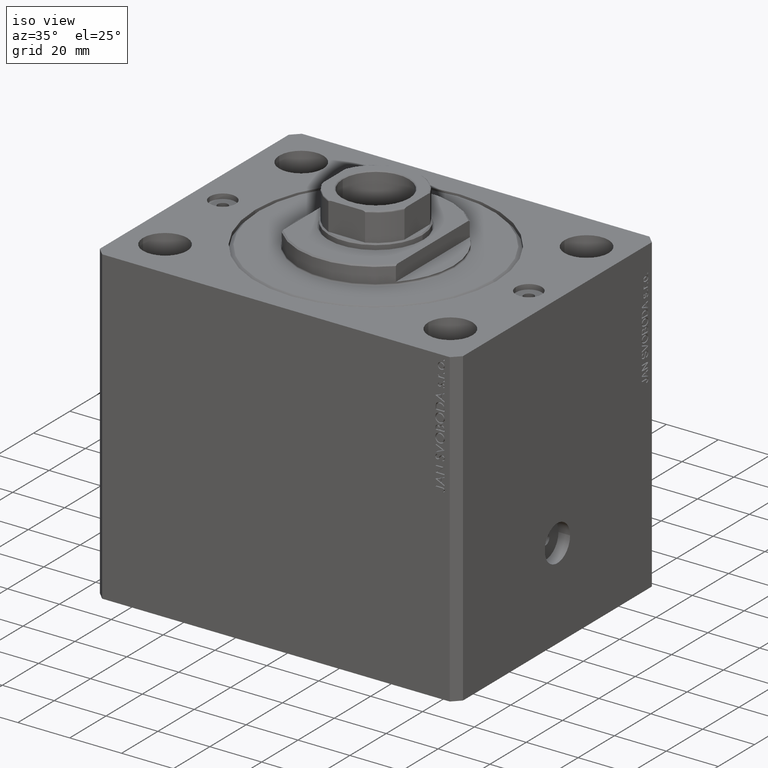
[diagram: clean part render]
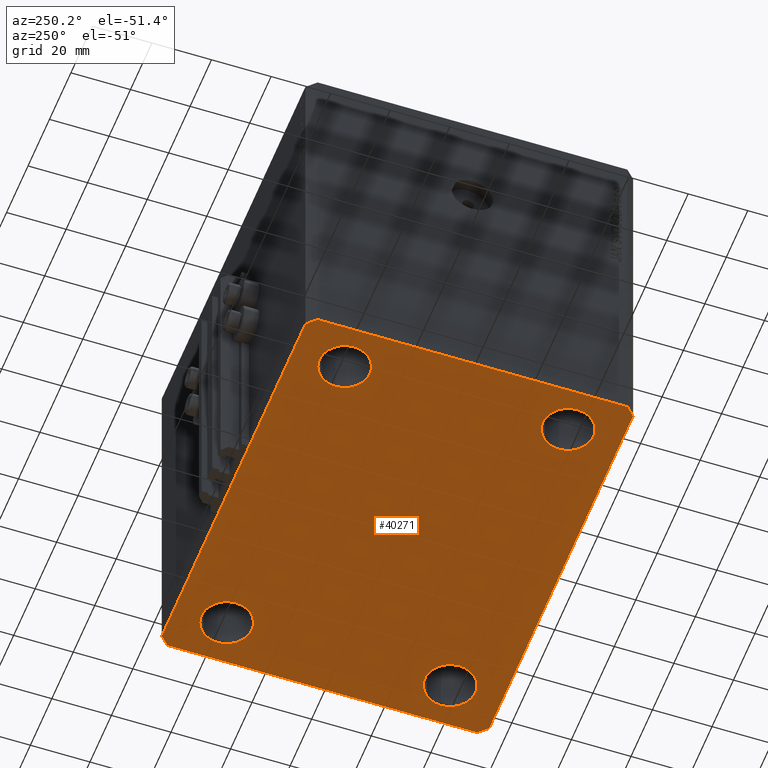
[diagram: tour spotlight — one face highlighted and labeled with its STEP entity id]
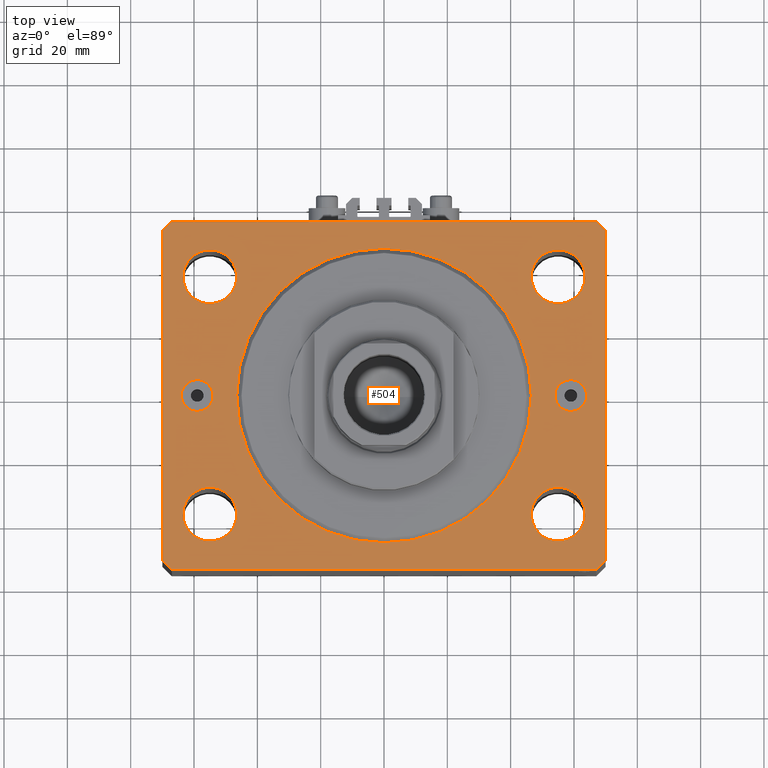
[diagram: tour spotlight — one face highlighted and labeled with its STEP entity id]
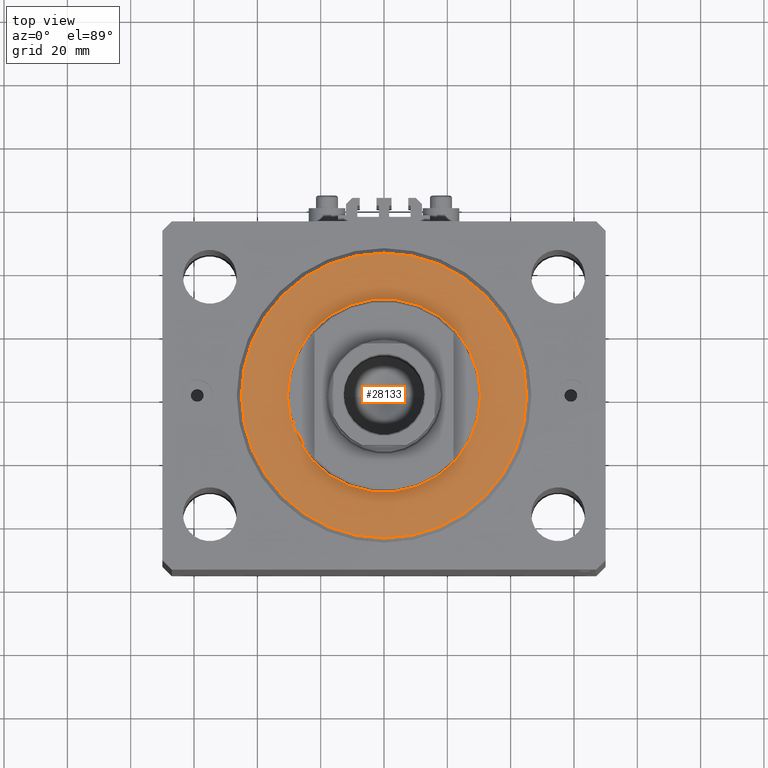
[diagram: tour spotlight — one face highlighted and labeled with its STEP entity id]
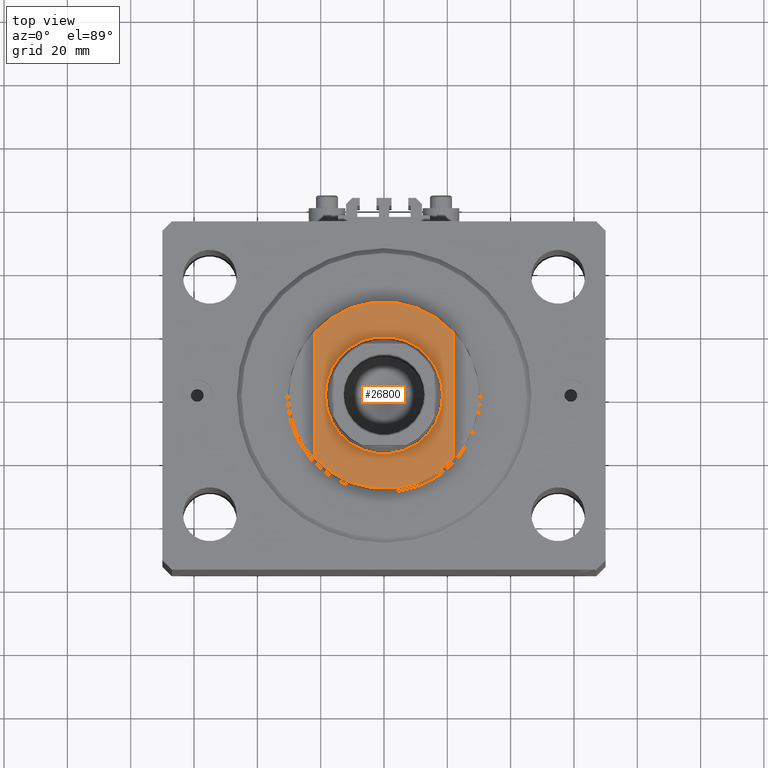
[diagram: tour spotlight — one face highlighted and labeled with its STEP entity id]
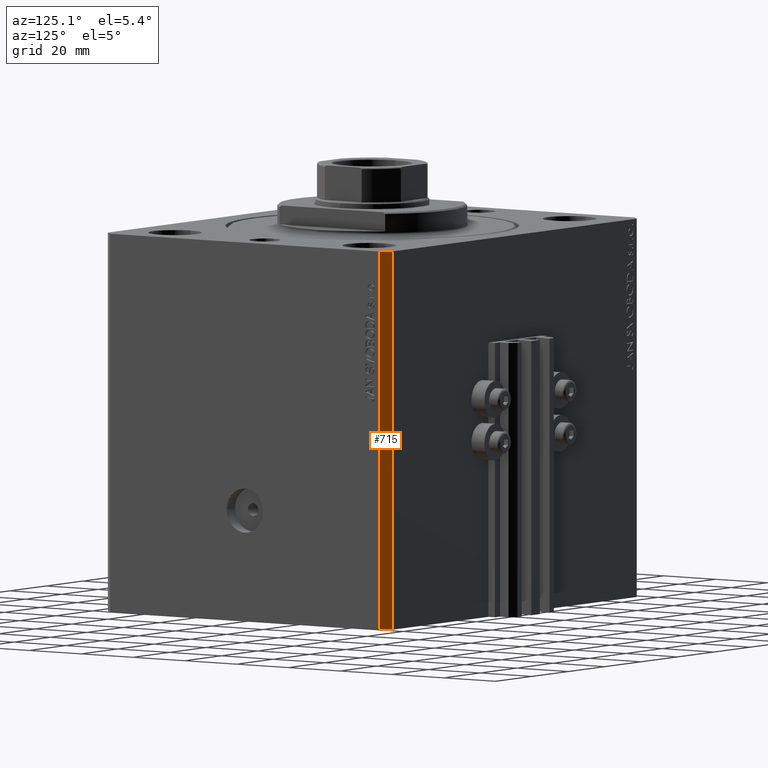
[diagram: tour spotlight — one face highlighted and labeled with its STEP entity id]
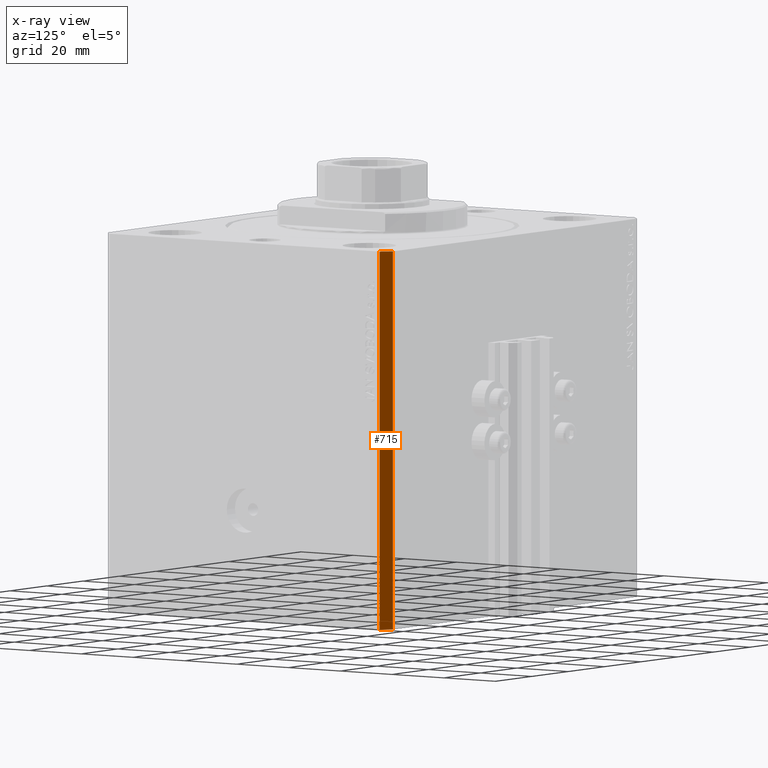
[diagram: x-ray of the same camera — body ghosted, this tour face saturated]
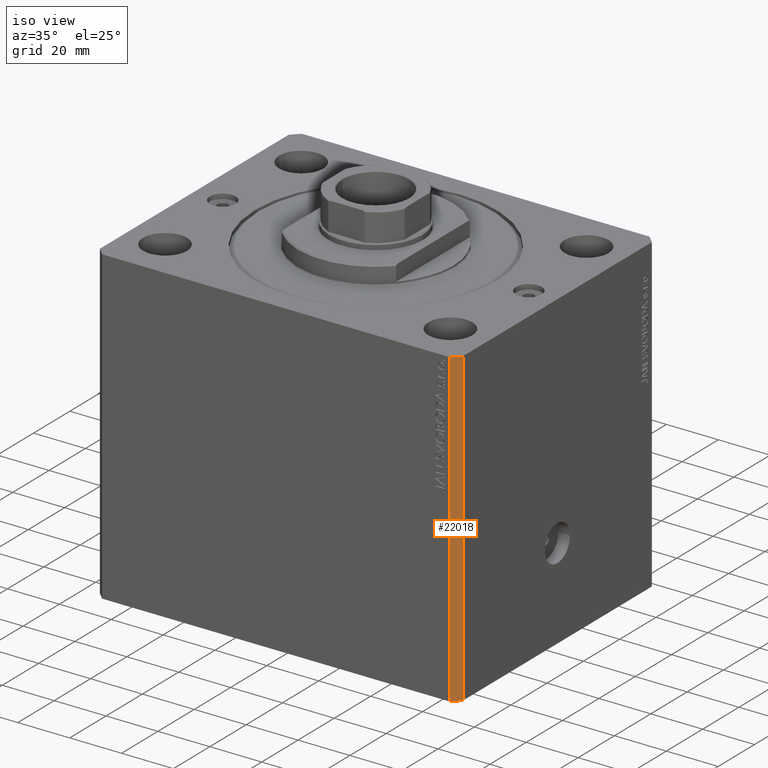
[diagram: tour spotlight — one face highlighted and labeled with its STEP entity id]
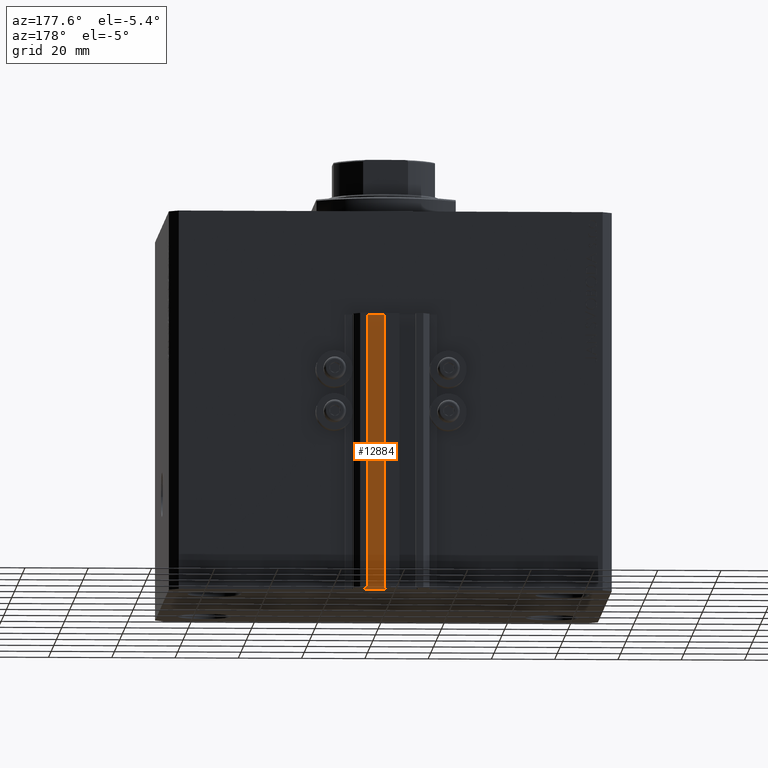
[diagram: tour spotlight — one face highlighted and labeled with its STEP entity id]
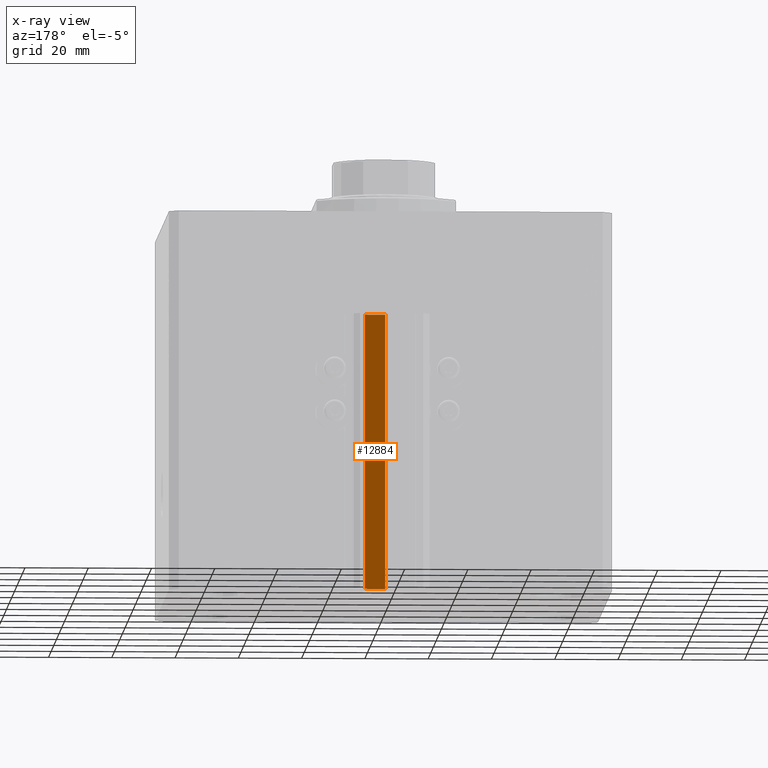
[diagram: x-ray of the same camera — body ghosted, this tour face saturated]
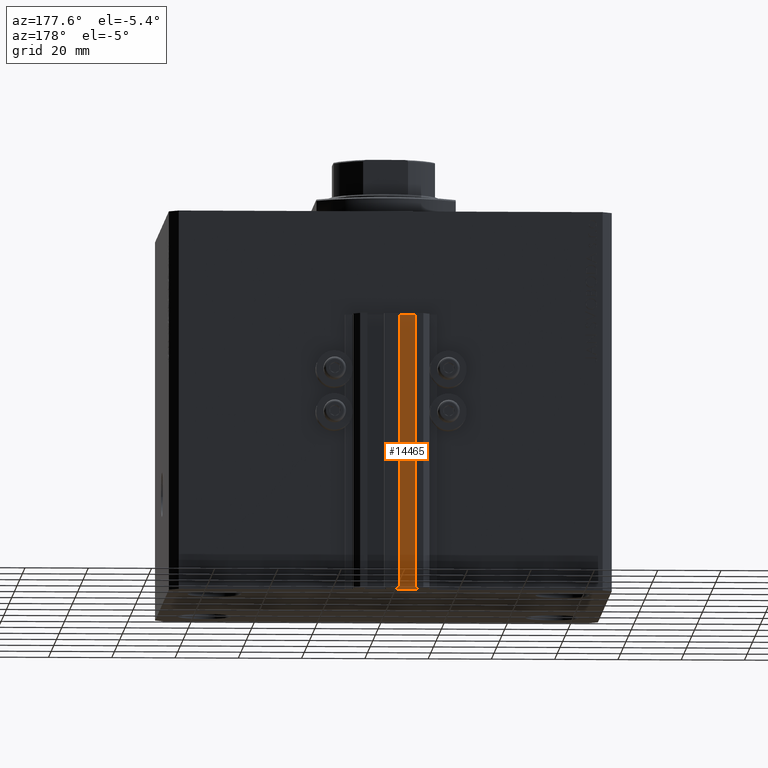
[diagram: tour spotlight — one face highlighted and labeled with its STEP entity id]
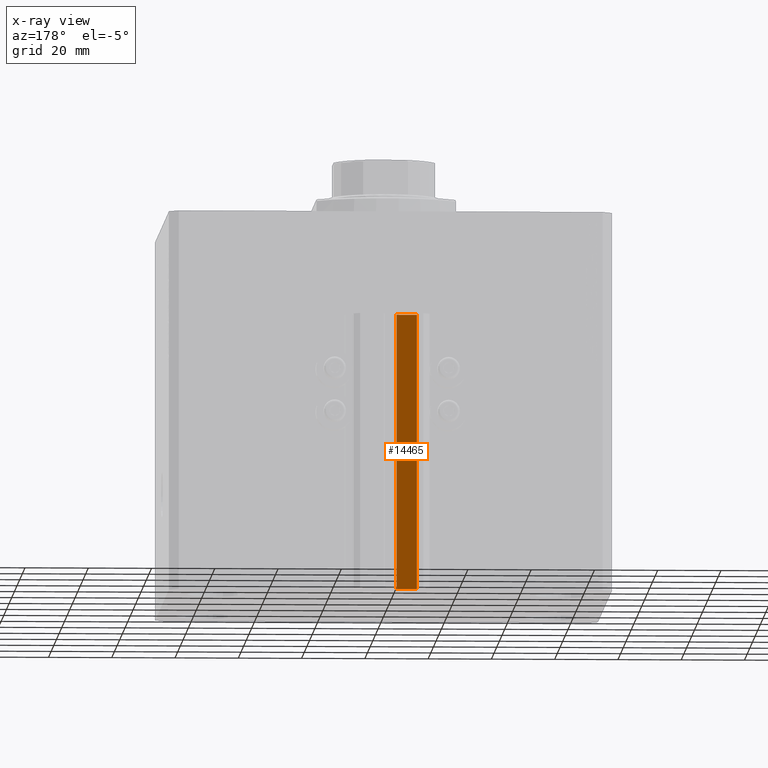
[diagram: x-ray of the same camera — body ghosted, this tour face saturated]
A machine part: a face-by-face anatomy tour. The part has 1034 B-rep faces; the first image is the clean iso view, then the 8 largest visible faces are spotlighted one at a time (largest first), each with its STEP entity span.

Face 1 — auxiliary view, entity #40271. In plain terms, the highlighted planar face has unit normal (0, 0, 1).
Definition (entity closure, byte-faithful):
#15 = AXIS2_PLACEMENT_3D ( 'NONE', #34628, #31282, #32637 ) ;
#825 = EDGE_CURVE ( 'NONE', #32129, #45608, #46816, .T. ) ;
#974 = CARTESIAN_POINT ( 'NONE',  ( 55.00000000000000711, 37.49999999999998579, -120.0000000000000000 ) ) ;
#1394 = VECTOR ( 'NONE', #35840, 1000.000000000000000 ) ;
#1973 = ORIENTED_EDGE ( 'NONE', *, *, #18885, .F. ) ;
#3153 = EDGE_CURVE ( 'NONE', #33104, #12061, #35719, .T. ) ;
#3765 = DIRECTION ( 'NONE',  ( 1.000000000000000000, 0.000000000000000000, 0.000000000000000000 ) ) ;
#5510 = EDGE_CURVE ( 'NONE', #17176, #36744, #23143, .T. ) ;
#5752 = CARTESIAN_POINT ( 'NONE',  ( 67.00000000000000000, -55.00000000000000000, -120.0000000000000000 ) ) ;
#5802 = CARTESIAN_POINT ( 'NONE',  ( -70.00000000000000000, -52.00000000000000711, -120.0000000000000000 ) ) ;
#5832 = EDGE_CURVE ( 'NONE', #18081, #9185, #10268, .T. ) ;
#6118 = CARTESIAN_POINT ( 'NONE',  ( 70.00000000000000000, -52.00000000000000711, -120.0000000000000000 ) ) ;
#6152 = VERTEX_POINT ( 'NONE', #5752 ) ;
#6359 = CARTESIAN_POINT ( 'NONE',  ( -70.00000000000000000, 52.00000000000000711, -120.0000000000000000 ) ) ;
#6669 = DIRECTION ( 'NONE',  ( 1.000000000000000000, 0.000000000000000000, 0.000000000000000000 ) ) ;
#7070 = ORIENTED_EDGE ( 'NONE', *, *, #22454, .F. ) ;
#7216 = DIRECTION ( 'NONE',  ( -0.000000000000000000, -0.000000000000000000, -1.000000000000000000 ) ) ;
#7298 = CARTESIAN_POINT ( 'NONE',  ( -70.00000000000000000, 52.00000000000000711, -120.0000000000000000 ) ) ;
#8676 = DIRECTION ( 'NONE',  ( 1.000000000000000000, 0.000000000000000000, 0.000000000000000000 ) ) ;
#8804 = VECTOR ( 'NONE', #44162, 1000.000000000000000 ) ;
#8816 = EDGE_LOOP ( 'NONE', ( #22209, #1973 ) ) ;
#9185 = VERTEX_POINT ( 'NONE', #40239 ) ;
#9712 = CARTESIAN_POINT ( 'NONE',  ( 67.00000000000058265, 54.99999999999999289, -120.0000000000000000 ) ) ;
#9790 = DIRECTION ( 'NONE',  ( 0.000000000000000000, 0.000000000000000000, 1.000000000000000000 ) ) ;
#9918 = ORIENTED_EDGE ( 'NONE', *, *, #34431, .F. ) ;
#10268 = CIRCLE ( 'NONE', #41645, 8.500000000000000000 ) ;
#11213 = ORIENTED_EDGE ( 'NONE', *, *, #5832, .F. ) ;
#11454 = CARTESIAN_POINT ( 'NONE',  ( -67.00000000000000000, 55.00000000000000000, -120.0000000000000000 ) ) ;
#11543 = LINE ( 'NONE', #43787, #45782 ) ;
#12061 = VERTEX_POINT ( 'NONE', #31009 ) ;
#12446 = LINE ( 'NONE', #29888, #28920 ) ;
#13147 = CARTESIAN_POINT ( 'NONE',  ( -55.00000000000000000, 37.50000000000000000, -120.0000000000000000 ) ) ;
#13159 = DIRECTION ( 'NONE',  ( 1.000000000000000000, 0.000000000000000000, -0.000000000000000000 ) ) ;
#13393 = FACE_BOUND ( 'NONE', #44972, .T. ) ;
#13531 = DIRECTION ( 'NONE',  ( 0.000000000000000000, -1.000000000000000000, 0.000000000000000000 ) ) ;
#14591 = CARTESIAN_POINT ( 'NONE',  ( -46.49999999999998579, -37.50000000000000711, -120.0000000000000000 ) ) ;
#15201 = ORIENTED_EDGE ( 'NONE', *, *, #24972, .F. ) ;
#15380 = ORIENTED_EDGE ( 'NONE', *, *, #23786, .F. ) ;
#15617 = CARTESIAN_POINT ( 'NONE',  ( 63.49999999999998579, -37.50000000000000711, -120.0000000000000000 ) ) ;
#15623 = CARTESIAN_POINT ( 'NONE',  ( 54.99999999999998579, -37.50000000000000711, -120.0000000000000000 ) ) ;
#16320 = EDGE_LOOP ( 'NONE', ( #15201, #22771, #18976, #47192, #9918, #39082, #15380, #27702 ) ) ;
#16377 = DIRECTION ( 'NONE',  ( 1.000000000000000000, 0.000000000000000000, 0.000000000000000000 ) ) ;
#16731 = VERTEX_POINT ( 'NONE', #47211 ) ;
#16985 = EDGE_CURVE ( 'NONE', #31369, #35739, #25812, .T. ) ;
#17176 = VERTEX_POINT ( 'NONE', #43094 ) ;
#17824 = CARTESIAN_POINT ( 'NONE',  ( 70.00000000000000000, -52.00000000000000711, -120.0000000000000000 ) ) ;
#17944 = CARTESIAN_POINT ( 'NONE',  ( -67.00000000000000000, -55.00000000000000000, -120.0000000000000000 ) ) ;
#17966 = VERTEX_POINT ( 'NONE', #25426 ) ;
#18081 = VERTEX_POINT ( 'NONE', #15617 ) ;
#18397 = EDGE_CURVE ( 'NONE', #12061, #24700, #12446, .T. ) ;
#18428 = AXIS2_PLACEMENT_3D ( 'NONE', #32766, #7216, #21808 ) ;
#18487 = DIRECTION ( 'NONE',  ( -1.000000000000000000, 5.178279032766565695E-17, 0.000000000000000000 ) ) ;
#18885 = EDGE_CURVE ( 'NONE', #35739, #31369, #20540, .T. ) ;
#18976 = ORIENTED_EDGE ( 'NONE', *, *, #3153, .F. ) ;
#19137 = DIRECTION ( 'NONE',  ( -0.000000000000000000, -0.000000000000000000, -1.000000000000000000 ) ) ;
#19443 = DIRECTION ( 'NONE',  ( -0.000000000000000000, -0.000000000000000000, -1.000000000000000000 ) ) ;
#20540 = CIRCLE ( 'NONE', #47224, 8.500000000000000000 ) ;
#20620 = DIRECTION ( 'NONE',  ( 0.7071067811865483499, -0.7071067811865466846, 0.000000000000000000 ) ) ;
#20765 = EDGE_CURVE ( 'NONE', #6152, #33104, #23359, .T. ) ;
#20924 = CARTESIAN_POINT ( 'NONE',  ( 55.00000000000000711, 37.49999999999998579, -120.0000000000000000 ) ) ;
#21033 = FACE_BOUND ( 'NONE', #25769, .T. ) ;
#21808 = DIRECTION ( 'NONE',  ( 1.000000000000000000, 0.000000000000000000, 0.000000000000000000 ) ) ;
#22209 = ORIENTED_EDGE ( 'NONE', *, *, #16985, .F. ) ;
#22454 = EDGE_CURVE ( 'NONE', #27093, #16731, #29700, .T. ) ;
#22575 = ORIENTED_EDGE ( 'NONE', *, *, #38798, .F. ) ;
#22771 = ORIENTED_EDGE ( 'NONE', *, *, #18397, .F. ) ;
#23143 = LINE ( 'NONE', #11454, #8804 ) ;
#23359 = LINE ( 'NONE', #33627, #38127 ) ;
#23458 = EDGE_CURVE ( 'NONE', #17966, #39627, #42560, .T. ) ;
#23786 = EDGE_CURVE ( 'NONE', #36744, #17966, #46235, .T. ) ;
#24038 = DIRECTION ( 'NONE',  ( -0.000000000000000000, -0.000000000000000000, -1.000000000000000000 ) ) ;
#24700 = VERTEX_POINT ( 'NONE', #9712 ) ;
#24972 = EDGE_CURVE ( 'NONE', #24700, #17176, #11543, .T. ) ;
#25064 = AXIS2_PLACEMENT_3D ( 'NONE', #38813, #28060, #16377 ) ;
#25341 = CARTESIAN_POINT ( 'NONE',  ( 63.50000000000000000, 37.49999999999998579, -120.0000000000000000 ) ) ;
#25426 = CARTESIAN_POINT ( 'NONE',  ( -70.00000000000000000, -52.00000000000000711, -120.0000000000000000 ) ) ;
#25769 = EDGE_LOOP ( 'NONE', ( #35957, #27926 ) ) ;
#25812 = CIRCLE ( 'NONE', #25064, 8.500000000000000000 ) ;
#25819 = DIRECTION ( 'NONE',  ( 1.000000000000000000, 0.000000000000000000, 0.000000000000000000 ) ) ;
#27093 = VERTEX_POINT ( 'NONE', #28671 ) ;
#27242 = FACE_BOUND ( 'NONE', #46068, .T. ) ;
#27480 = FACE_BOUND ( 'NONE', #8816, .T. ) ;
#27702 = ORIENTED_EDGE ( 'NONE', *, *, #5510, .F. ) ;
#27926 = ORIENTED_EDGE ( 'NONE', *, *, #825, .F. ) ;
#28060 = DIRECTION ( 'NONE',  ( -0.000000000000000000, -0.000000000000000000, -1.000000000000000000 ) ) ;
#28671 = CARTESIAN_POINT ( 'NONE',  ( -46.50000000000000000, 37.50000000000000000, -120.0000000000000000 ) ) ;
#28920 = VECTOR ( 'NONE', #44451, 1000.000000000000114 ) ;
#28988 = VECTOR ( 'NONE', #13531, 1000.000000000000000 ) ;
#29312 = CARTESIAN_POINT ( 'NONE',  ( -54.99999999999998579, -37.50000000000000711, -120.0000000000000000 ) ) ;
#29700 = CIRCLE ( 'NONE', #40379, 8.500000000000000000 ) ;
#29888 = CARTESIAN_POINT ( 'NONE',  ( 70.00000000000054001, 51.99999999999995026, -120.0000000000000000 ) ) ;
#31009 = CARTESIAN_POINT ( 'NONE',  ( 70.00000000000054001, 51.99999999999995026, -120.0000000000000000 ) ) ;
#31282 = DIRECTION ( 'NONE',  ( -0.000000000000000000, -0.000000000000000000, -1.000000000000000000 ) ) ;
#31369 = VERTEX_POINT ( 'NONE', #14591 ) ;
#31543 = AXIS2_PLACEMENT_3D ( 'NONE', #974, #19137, #25819 ) ;
#31783 = EDGE_CURVE ( 'NONE', #45608, #32129, #47241, .T. ) ;
#31882 = CARTESIAN_POINT ( 'NONE',  ( 46.50000000000001421, 37.49999999999998579, -120.0000000000000000 ) ) ;
#32129 = VERTEX_POINT ( 'NONE', #31882 ) ;
#32637 = DIRECTION ( 'NONE',  ( 1.000000000000000000, 0.000000000000000000, 0.000000000000000000 ) ) ;
#32766 = CARTESIAN_POINT ( 'NONE',  ( 54.99999999999998579, -37.50000000000000711, -120.0000000000000000 ) ) ;
#33104 = VERTEX_POINT ( 'NONE', #6118 ) ;
#33627 = CARTESIAN_POINT ( 'NONE',  ( 67.00000000000000000, -55.00000000000000000, -120.0000000000000000 ) ) ;
#34423 = AXIS2_PLACEMENT_3D ( 'NONE', #35121, #9790, #13159 ) ;
#34431 = EDGE_CURVE ( 'NONE', #39627, #6152, #35601, .T. ) ;
#34628 = CARTESIAN_POINT ( 'NONE',  ( -55.00000000000000000, 37.50000000000000000, -120.0000000000000000 ) ) ;
#35121 = CARTESIAN_POINT ( 'NONE',  ( 0.000000000000000000, 0.000000000000000000, -120.0000000000000000 ) ) ;
#35341 = DIRECTION ( 'NONE',  ( -0.000000000000000000, -0.000000000000000000, -1.000000000000000000 ) ) ;
#35528 = CARTESIAN_POINT ( 'NONE',  ( -63.49999999999998579, -37.50000000000000711, -120.0000000000000000 ) ) ;
#35601 = LINE ( 'NONE', #17944, #1394 ) ;
#35719 = LINE ( 'NONE', #17824, #36234 ) ;
#35739 = VERTEX_POINT ( 'NONE', #35528 ) ;
#35840 = DIRECTION ( 'NONE',  ( 1.000000000000000000, 0.000000000000000000, 0.000000000000000000 ) ) ;
#35957 = ORIENTED_EDGE ( 'NONE', *, *, #31783, .F. ) ;
#36234 = VECTOR ( 'NONE', #39071, 1000.000000000000000 ) ;
#36580 = AXIS2_PLACEMENT_3D ( 'NONE', #20924, #24038, #38363 ) ;
#36720 = CIRCLE ( 'NONE', #18428, 8.500000000000000000 ) ;
#36744 = VERTEX_POINT ( 'NONE', #7298 ) ;
#36970 = DIRECTION ( 'NONE',  ( 0.7071067811865483499, 0.7071067811865466846, 0.000000000000000000 ) ) ;
#38127 = VECTOR ( 'NONE', #36970, 1000.000000000000000 ) ;
#38228 = CARTESIAN_POINT ( 'NONE',  ( -67.00000000000000000, -55.00000000000000000, -120.0000000000000000 ) ) ;
#38363 = DIRECTION ( 'NONE',  ( 1.000000000000000000, 0.000000000000000000, 0.000000000000000000 ) ) ;
#38697 = PLANE ( 'NONE',  #34423 ) ;
#38777 = CIRCLE ( 'NONE', #15, 8.500000000000000000 ) ;
#38798 = EDGE_CURVE ( 'NONE', #16731, #27093, #38777, .T. ) ;
#38813 = CARTESIAN_POINT ( 'NONE',  ( -54.99999999999998579, -37.50000000000000711, -120.0000000000000000 ) ) ;
#39071 = DIRECTION ( 'NONE',  ( 5.070730160547592760E-15, 1.000000000000000000, 0.000000000000000000 ) ) ;
#39082 = ORIENTED_EDGE ( 'NONE', *, *, #23458, .F. ) ;
#39627 = VERTEX_POINT ( 'NONE', #38228 ) ;
#40134 = EDGE_CURVE ( 'NONE', #9185, #18081, #36720, .T. ) ;
#40239 = CARTESIAN_POINT ( 'NONE',  ( 46.49999999999998579, -37.50000000000000711, -120.0000000000000000 ) ) ;
#40271 = ADVANCED_FACE ( 'NONE', ( #27480, #27242, #21033, #13393, #45853 ), #38697, .F. ) ;
#40379 = AXIS2_PLACEMENT_3D ( 'NONE', #13147, #35341, #6669 ) ;
#40710 = ORIENTED_EDGE ( 'NONE', *, *, #40134, .F. ) ;
#41227 = DIRECTION ( 'NONE',  ( -0.000000000000000000, -0.000000000000000000, -1.000000000000000000 ) ) ;
#41645 = AXIS2_PLACEMENT_3D ( 'NONE', #15623, #19443, #8676 ) ;
#42560 = LINE ( 'NONE', #5802, #42649 ) ;
#42649 = VECTOR ( 'NONE', #20620, 1000.000000000000000 ) ;
#43094 = CARTESIAN_POINT ( 'NONE',  ( -67.00000000000000000, 55.00000000000000000, -120.0000000000000000 ) ) ;
#43787 = CARTESIAN_POINT ( 'NONE',  ( 67.00000000000058265, 54.99999999999999289, -120.0000000000000000 ) ) ;
#44162 = DIRECTION ( 'NONE',  ( -0.7071067811865483499, -0.7071067811865466846, 0.000000000000000000 ) ) ;
#44451 = DIRECTION ( 'NONE',  ( -0.7071067811865361374, 0.7071067811865588970, 0.000000000000000000 ) ) ;
#44972 = EDGE_LOOP ( 'NONE', ( #7070, #22575 ) ) ;
#45608 = VERTEX_POINT ( 'NONE', #25341 ) ;
#45782 = VECTOR ( 'NONE', #18487, 1000.000000000000000 ) ;
#45853 = FACE_OUTER_BOUND ( 'NONE', #16320, .T. ) ;
#46068 = EDGE_LOOP ( 'NONE', ( #11213, #40710 ) ) ;
#46235 = LINE ( 'NONE', #6359, #28988 ) ;
#46816 = CIRCLE ( 'NONE', #31543, 8.499999999999992895 ) ;
#47192 = ORIENTED_EDGE ( 'NONE', *, *, #20765, .F. ) ;
#47211 = CARTESIAN_POINT ( 'NONE',  ( -63.50000000000000000, 37.50000000000000000, -120.0000000000000000 ) ) ;
#47224 = AXIS2_PLACEMENT_3D ( 'NONE', #29312, #41227, #3765 ) ;
#47241 = CIRCLE ( 'NONE', #36580, 8.499999999999992895 ) ;

Face 2 — top view, entity #504. In plain terms, the highlighted planar face has unit normal (0, 0, 1).
Definition (entity closure, byte-faithful):
#26 = CIRCLE ( 'NONE', #45004, 5.000000000000004441 ) ;
#164 = FACE_BOUND ( 'NONE', #36351, .T. ) ;
#504 = ADVANCED_FACE ( 'NONE', ( #4436, #25937, #7785, #14504, #16077, #164, #29060, #30868 ), #24416, .T. ) ;
#1209 = AXIS2_PLACEMENT_3D ( 'NONE', #10739, #22216, #39393 ) ;
#1619 = DIRECTION ( 'NONE',  ( 0.000000000000000000, 0.000000000000000000, 1.000000000000000000 ) ) ;
#1835 = AXIS2_PLACEMENT_3D ( 'NONE', #26411, #41214, #41685 ) ;
#1838 = DIRECTION ( 'NONE',  ( 1.000000000000000000, 0.000000000000000000, 0.000000000000000000 ) ) ;
#2528 = LINE ( 'NONE', #17091, #28964 ) ;
#2601 = LINE ( 'NONE', #17170, #7680 ) ;
#2667 = DIRECTION ( 'NONE',  ( 0.000000000000000000, 0.000000000000000000, 1.000000000000000000 ) ) ;
#2735 = VERTEX_POINT ( 'NONE', #42711 ) ;
#2968 = AXIS2_PLACEMENT_3D ( 'NONE', #40046, #3273, #7088 ) ;
#3042 = CARTESIAN_POINT ( 'NONE',  ( -70.00000000000000000, -52.00000000000000711, 0.000000000000000000 ) ) ;
#3144 = EDGE_LOOP ( 'NONE', ( #16419, #33039, #36509, #24237, #36335, #20887, #40556, #26769 ) ) ;
#3273 = DIRECTION ( 'NONE',  ( 0.000000000000000000, 0.000000000000000000, 1.000000000000000000 ) ) ;
#3334 = CIRCLE ( 'NONE', #23145, 8.500000000000000000 ) ;
#3381 = DIRECTION ( 'NONE',  ( 1.000000000000000000, 0.000000000000000000, 0.000000000000000000 ) ) ;
#3476 = DIRECTION ( 'NONE',  ( 1.000000000000000000, 0.000000000000000000, 0.000000000000000000 ) ) ;
#3731 = AXIS2_PLACEMENT_3D ( 'NONE', #5199, #1619, #22660 ) ;
#3935 = CIRCLE ( 'NONE', #30609, 8.500000000000000000 ) ;
#4060 = EDGE_CURVE ( 'NONE', #14508, #20417, #11064, .T. ) ;
#4436 = FACE_OUTER_BOUND ( 'NONE', #3144, .T. ) ;
#4690 = DIRECTION ( 'NONE',  ( -0.7071067811865361374, 0.7071067811865588970, 0.000000000000000000 ) ) ;
#5199 = CARTESIAN_POINT ( 'NONE',  ( 54.99999999999998579, -37.50000000000000711, 0.000000000000000000 ) ) ;
#5286 = DIRECTION ( 'NONE',  ( 0.7071067811865483499, -0.7071067811865466846, 0.000000000000000000 ) ) ;
#5359 = EDGE_CURVE ( 'NONE', #20417, #14508, #30185, .T. ) ;
#5623 = CIRCLE ( 'NONE', #17837, 8.499999999999992895 ) ;
#5787 = DIRECTION ( 'NONE',  ( 0.000000000000000000, 0.000000000000000000, 1.000000000000000000 ) ) ;
#5979 = VERTEX_POINT ( 'NONE', #11275 ) ;
#6043 = CIRCLE ( 'NONE', #3731, 8.500000000000000000 ) ;
#6220 = VERTEX_POINT ( 'NONE', #18164 ) ;
#6494 = ORIENTED_EDGE ( 'NONE', *, *, #47235, .F. ) ;
#6596 = DIRECTION ( 'NONE',  ( 1.000000000000000000, 0.000000000000000000, 0.000000000000000000 ) ) ;
#7088 = DIRECTION ( 'NONE',  ( 1.000000000000000000, 0.000000000000000000, 0.000000000000000000 ) ) ;
#7654 = EDGE_LOOP ( 'NONE', ( #37254, #33047 ) ) ;
#7680 = VECTOR ( 'NONE', #13587, 1000.000000000000000 ) ;
#7785 = FACE_BOUND ( 'NONE', #24408, .T. ) ;
#8262 = LINE ( 'NONE', #37406, #13997 ) ;
#8332 = CARTESIAN_POINT ( 'NONE',  ( -46.49999999999998579, -37.50000000000000711, 0.000000000000000000 ) ) ;
#8445 = CARTESIAN_POINT ( 'NONE',  ( 64.00000000000000000, 0.000000000000000000, 0.000000000000000000 ) ) ;
#8792 = VERTEX_POINT ( 'NONE', #16040 ) ;
#9065 = EDGE_CURVE ( 'NONE', #8792, #42854, #19485, .T. ) ;
#9190 = VERTEX_POINT ( 'NONE', #19447 ) ;
#9684 = DIRECTION ( 'NONE',  ( 0.000000000000000000, 0.000000000000000000, 1.000000000000000000 ) ) ;
#9891 = VERTEX_POINT ( 'NONE', #31903 ) ;
#9947 = DIRECTION ( 'NONE',  ( 0.000000000000000000, 0.000000000000000000, 1.000000000000000000 ) ) ;
#10011 = EDGE_CURVE ( 'NONE', #39305, #9190, #16480, .T. ) ;
#10649 = DIRECTION ( 'NONE',  ( 1.000000000000000000, 0.000000000000000000, 0.000000000000000000 ) ) ;
#10739 = CARTESIAN_POINT ( 'NONE',  ( -59.00000000000000000, 0.000000000000000000, 0.000000000000000000 ) ) ;
#11064 = CIRCLE ( 'NONE', #20992, 4.999999999999997335 ) ;
#11112 = DIRECTION ( 'NONE',  ( 1.000000000000000000, 0.000000000000000000, 0.000000000000000000 ) ) ;
#11275 = CARTESIAN_POINT ( 'NONE',  ( 46.50000000000000000, 0.000000000000000000, 0.000000000000000000 ) ) ;
#11576 = CARTESIAN_POINT ( 'NONE',  ( -67.00000000000000000, -55.00000000000000000, 0.000000000000000000 ) ) ;
#12194 = VECTOR ( 'NONE', #11112, 1000.000000000000000 ) ;
#12786 = ORIENTED_EDGE ( 'NONE', *, *, #46895, .F. ) ;
#12967 = DIRECTION ( 'NONE',  ( 1.000000000000000000, 0.000000000000000000, -0.000000000000000000 ) ) ;
#13455 = CARTESIAN_POINT ( 'NONE',  ( -70.00000000000000000, 52.00000000000000711, 0.000000000000000000 ) ) ;
#13504 = CARTESIAN_POINT ( 'NONE',  ( 67.00000000000058265, 54.99999999999999289, 0.000000000000000000 ) ) ;
#13550 = ORIENTED_EDGE ( 'NONE', *, *, #24703, .T. ) ;
#13587 = DIRECTION ( 'NONE',  ( 0.7071067811865483499, 0.7071067811865466846, 0.000000000000000000 ) ) ;
#13705 = CARTESIAN_POINT ( 'NONE',  ( -64.00000000000000000, 6.123233995736754449E-16, 0.000000000000000000 ) ) ;
#13877 = CIRCLE ( 'NONE', #38284, 5.000000000000004441 ) ;
#13997 = VECTOR ( 'NONE', #4690, 1000.000000000000114 ) ;
#14092 = CARTESIAN_POINT ( 'NONE',  ( -67.00000000000000000, 55.00000000000000000, 0.000000000000000000 ) ) ;
#14160 = DIRECTION ( 'NONE',  ( 0.000000000000000000, -0.000000000000000000, -1.000000000000000000 ) ) ;
#14504 = FACE_BOUND ( 'NONE', #35170, .T. ) ;
#14508 = VERTEX_POINT ( 'NONE', #13705 ) ;
#14878 = CARTESIAN_POINT ( 'NONE',  ( 59.00000000000000000, 0.000000000000000000, 0.000000000000000000 ) ) ;
#15665 = AXIS2_PLACEMENT_3D ( 'NONE', #35006, #9684, #3476 ) ;
#15856 = VERTEX_POINT ( 'NONE', #3042 ) ;
#16040 = CARTESIAN_POINT ( 'NONE',  ( 46.50000000000001421, 37.49999999999998579, 0.000000000000000000 ) ) ;
#16077 = FACE_BOUND ( 'NONE', #23258, .T. ) ;
#16419 = ORIENTED_EDGE ( 'NONE', *, *, #39845, .T. ) ;
#16480 = CIRCLE ( 'NONE', #39345, 8.500000000000000000 ) ;
#17077 = CIRCLE ( 'NONE', #1835, 46.50000000000000000 ) ;
#17079 = VERTEX_POINT ( 'NONE', #13504 ) ;
#17091 = CARTESIAN_POINT ( 'NONE',  ( -70.00000000000000000, -52.00000000000000711, 0.000000000000000000 ) ) ;
#17170 = CARTESIAN_POINT ( 'NONE',  ( 67.00000000000000000, -55.00000000000000000, 0.000000000000000000 ) ) ;
#17244 = CARTESIAN_POINT ( 'NONE',  ( 0.000000000000000000, 0.000000000000000000, 0.000000000000000000 ) ) ;
#17667 = VECTOR ( 'NONE', #39220, 1000.000000000000000 ) ;
#17837 = AXIS2_PLACEMENT_3D ( 'NONE', #21192, #35988, #42914 ) ;
#18164 = CARTESIAN_POINT ( 'NONE',  ( -70.00000000000000000, 52.00000000000000711, 0.000000000000000000 ) ) ;
#19126 = VERTEX_POINT ( 'NONE', #39765 ) ;
#19173 = EDGE_CURVE ( 'NONE', #15856, #42137, #2528, .T. ) ;
#19346 = CARTESIAN_POINT ( 'NONE',  ( -63.49999999999998579, -37.50000000000000711, 0.000000000000000000 ) ) ;
#19447 = CARTESIAN_POINT ( 'NONE',  ( -63.50000000000000000, 37.50000000000000000, 0.000000000000000000 ) ) ;
#19452 = DIRECTION ( 'NONE',  ( 0.000000000000000000, 0.000000000000000000, 1.000000000000000000 ) ) ;
#19485 = CIRCLE ( 'NONE', #15665, 8.499999999999992895 ) ;
#19733 = LINE ( 'NONE', #13455, #17667 ) ;
#19750 = CIRCLE ( 'NONE', #2968, 8.500000000000000000 ) ;
#20140 = AXIS2_PLACEMENT_3D ( 'NONE', #17244, #5787, #12967 ) ;
#20417 = VERTEX_POINT ( 'NONE', #32462 ) ;
#20552 = VECTOR ( 'NONE', #21257, 1000.000000000000000 ) ;
#20828 = CARTESIAN_POINT ( 'NONE',  ( 54.99999999999998579, -37.50000000000000711, 0.000000000000000000 ) ) ;
#20887 = ORIENTED_EDGE ( 'NONE', *, *, #26308, .T. ) ;
#20992 = AXIS2_PLACEMENT_3D ( 'NONE', #35971, #9947, #6596 ) ;
#21192 = CARTESIAN_POINT ( 'NONE',  ( 55.00000000000000711, 37.49999999999998579, 0.000000000000000000 ) ) ;
#21257 = DIRECTION ( 'NONE',  ( -1.000000000000000000, 5.178279032766565695E-17, 0.000000000000000000 ) ) ;
#21668 = EDGE_CURVE ( 'NONE', #41151, #9891, #6043, .T. ) ;
#21897 = EDGE_CURVE ( 'NONE', #9190, #39305, #19750, .T. ) ;
#22216 = DIRECTION ( 'NONE',  ( 0.000000000000000000, 0.000000000000000000, 1.000000000000000000 ) ) ;
#22579 = DIRECTION ( 'NONE',  ( 5.070730160547592760E-15, 1.000000000000000000, 0.000000000000000000 ) ) ;
#22660 = DIRECTION ( 'NONE',  ( 1.000000000000000000, 0.000000000000000000, 0.000000000000000000 ) ) ;
#22895 = AXIS2_PLACEMENT_3D ( 'NONE', #45065, #26915, #1838 ) ;
#23145 = AXIS2_PLACEMENT_3D ( 'NONE', #20828, #2667, #3381 ) ;
#23258 = EDGE_LOOP ( 'NONE', ( #29920, #28839 ) ) ;
#23392 = ORIENTED_EDGE ( 'NONE', *, *, #41777, .F. ) ;
#23729 = EDGE_CURVE ( 'NONE', #40586, #42775, #35090, .T. ) ;
#24085 = CARTESIAN_POINT ( 'NONE',  ( -54.99999999999998579, -37.50000000000000711, 0.000000000000000000 ) ) ;
#24237 = ORIENTED_EDGE ( 'NONE', *, *, #19173, .T. ) ;
#24270 = CARTESIAN_POINT ( 'NONE',  ( -67.00000000000000000, 55.00000000000000000, 0.000000000000000000 ) ) ;
#24408 = EDGE_LOOP ( 'NONE', ( #12786, #35343 ) ) ;
#24416 = PLANE ( 'NONE',  #20140 ) ;
#24703 = EDGE_CURVE ( 'NONE', #34895, #30720, #26, .T. ) ;
#24784 = CARTESIAN_POINT ( 'NONE',  ( -46.50000000000000000, 5.694607616035192278E-15, 0.000000000000000000 ) ) ;
#25232 = DIRECTION ( 'NONE',  ( 0.000000000000000000, -0.000000000000000000, -1.000000000000000000 ) ) ;
#25334 = VERTEX_POINT ( 'NONE', #29635 ) ;
#25937 = FACE_BOUND ( 'NONE', #7654, .T. ) ;
#26104 = ORIENTED_EDGE ( 'NONE', *, *, #41119, .T. ) ;
#26308 = EDGE_CURVE ( 'NONE', #19126, #25334, #2601, .T. ) ;
#26411 = CARTESIAN_POINT ( 'NONE',  ( 0.000000000000000000, 0.000000000000000000, 0.000000000000000000 ) ) ;
#26500 = ORIENTED_EDGE ( 'NONE', *, *, #29282, .F. ) ;
#26769 = ORIENTED_EDGE ( 'NONE', *, *, #29837, .T. ) ;
#26915 = DIRECTION ( 'NONE',  ( 0.000000000000000000, 0.000000000000000000, 1.000000000000000000 ) ) ;
#27016 = CARTESIAN_POINT ( 'NONE',  ( 46.49999999999998579, -37.50000000000000711, 0.000000000000000000 ) ) ;
#27191 = DIRECTION ( 'NONE',  ( 0.000000000000000000, 0.000000000000000000, 1.000000000000000000 ) ) ;
#27623 = EDGE_LOOP ( 'NONE', ( #44716, #30685 ) ) ;
#28839 = ORIENTED_EDGE ( 'NONE', *, *, #40707, .F. ) ;
#28964 = VECTOR ( 'NONE', #5286, 1000.000000000000000 ) ;
#29060 = FACE_BOUND ( 'NONE', #27623, .T. ) ;
#29282 = EDGE_CURVE ( 'NONE', #9891, #41151, #3334, .T. ) ;
#29433 = DIRECTION ( 'NONE',  ( 1.000000000000000000, 0.000000000000000000, 0.000000000000000000 ) ) ;
#29635 = CARTESIAN_POINT ( 'NONE',  ( 70.00000000000000000, -52.00000000000000711, 0.000000000000000000 ) ) ;
#29837 = EDGE_CURVE ( 'NONE', #2735, #17079, #8262, .T. ) ;
#29920 = ORIENTED_EDGE ( 'NONE', *, *, #23729, .F. ) ;
#30185 = CIRCLE ( 'NONE', #1209, 4.999999999999997335 ) ;
#30609 = AXIS2_PLACEMENT_3D ( 'NONE', #24085, #27191, #38644 ) ;
#30685 = ORIENTED_EDGE ( 'NONE', *, *, #4060, .F. ) ;
#30720 = VERTEX_POINT ( 'NONE', #37232 ) ;
#30868 = FACE_BOUND ( 'NONE', #46253, .T. ) ;
#31212 = VECTOR ( 'NONE', #22579, 1000.000000000000000 ) ;
#31789 = VERTEX_POINT ( 'NONE', #24270 ) ;
#31829 = CARTESIAN_POINT ( 'NONE',  ( -67.00000000000000000, -55.00000000000000000, 0.000000000000000000 ) ) ;
#31903 = CARTESIAN_POINT ( 'NONE',  ( 63.49999999999998579, -37.50000000000000711, 0.000000000000000000 ) ) ;
#31959 = EDGE_CURVE ( 'NONE', #25334, #2735, #37124, .T. ) ;
#32220 = LINE ( 'NONE', #14092, #45840 ) ;
#32382 = CARTESIAN_POINT ( 'NONE',  ( 59.00000000000000000, 0.000000000000000000, 0.000000000000000000 ) ) ;
#32462 = CARTESIAN_POINT ( 'NONE',  ( -54.00000000000000000, 0.000000000000000000, 0.000000000000000000 ) ) ;
#33039 = ORIENTED_EDGE ( 'NONE', *, *, #39855, .T. ) ;
#33047 = ORIENTED_EDGE ( 'NONE', *, *, #21897, .F. ) ;
#33171 = EDGE_CURVE ( 'NONE', #42137, #19126, #44053, .T. ) ;
#34009 = CARTESIAN_POINT ( 'NONE',  ( 0.000000000000000000, 0.000000000000000000, 0.000000000000000000 ) ) ;
#34374 = CARTESIAN_POINT ( 'NONE',  ( 63.50000000000000000, 37.49999999999998579, 0.000000000000000000 ) ) ;
#34895 = VERTEX_POINT ( 'NONE', #8445 ) ;
#35006 = CARTESIAN_POINT ( 'NONE',  ( 55.00000000000000711, 37.49999999999998579, 0.000000000000000000 ) ) ;
#35090 = CIRCLE ( 'NONE', #22895, 8.500000000000000000 ) ;
#35170 = EDGE_LOOP ( 'NONE', ( #26500, #36160 ) ) ;
#35343 = ORIENTED_EDGE ( 'NONE', *, *, #9065, .F. ) ;
#35869 = CARTESIAN_POINT ( 'NONE',  ( -46.50000000000000000, 37.50000000000000000, 0.000000000000000000 ) ) ;
#35966 = CARTESIAN_POINT ( 'NONE',  ( -55.00000000000000000, 37.50000000000000000, 0.000000000000000000 ) ) ;
#35971 = CARTESIAN_POINT ( 'NONE',  ( -59.00000000000000000, 0.000000000000000000, 0.000000000000000000 ) ) ;
#35988 = DIRECTION ( 'NONE',  ( 0.000000000000000000, 0.000000000000000000, 1.000000000000000000 ) ) ;
#36160 = ORIENTED_EDGE ( 'NONE', *, *, #21668, .F. ) ;
#36296 = DIRECTION ( 'NONE',  ( -0.7071067811865483499, -0.7071067811865466846, 0.000000000000000000 ) ) ;
#36335 = ORIENTED_EDGE ( 'NONE', *, *, #33171, .T. ) ;
#36351 = EDGE_LOOP ( 'NONE', ( #6494, #23392 ) ) ;
#36509 = ORIENTED_EDGE ( 'NONE', *, *, #40971, .T. ) ;
#36764 = CARTESIAN_POINT ( 'NONE',  ( 67.00000000000058265, 54.99999999999999289, 0.000000000000000000 ) ) ;
#37124 = LINE ( 'NONE', #44057, #31212 ) ;
#37232 = CARTESIAN_POINT ( 'NONE',  ( 53.99999999999999289, 6.123233995736770227E-16, 0.000000000000000000 ) ) ;
#37254 = ORIENTED_EDGE ( 'NONE', *, *, #10011, .F. ) ;
#37406 = CARTESIAN_POINT ( 'NONE',  ( 70.00000000000054001, 51.99999999999995026, 0.000000000000000000 ) ) ;
#38284 = AXIS2_PLACEMENT_3D ( 'NONE', #14878, #14160, #29433 ) ;
#38644 = DIRECTION ( 'NONE',  ( 1.000000000000000000, 0.000000000000000000, 0.000000000000000000 ) ) ;
#39220 = DIRECTION ( 'NONE',  ( 0.000000000000000000, -1.000000000000000000, 0.000000000000000000 ) ) ;
#39305 = VERTEX_POINT ( 'NONE', #35869 ) ;
#39345 = AXIS2_PLACEMENT_3D ( 'NONE', #35966, #43841, #10649 ) ;
#39393 = DIRECTION ( 'NONE',  ( 1.000000000000000000, 0.000000000000000000, 0.000000000000000000 ) ) ;
#39765 = CARTESIAN_POINT ( 'NONE',  ( 67.00000000000000000, -55.00000000000000000, 0.000000000000000000 ) ) ;
#39781 = CIRCLE ( 'NONE', #44347, 46.50000000000000000 ) ;
#39845 = EDGE_CURVE ( 'NONE', #17079, #31789, #40353, .T. ) ;
#39855 = EDGE_CURVE ( 'NONE', #31789, #6220, #32220, .T. ) ;
#40046 = CARTESIAN_POINT ( 'NONE',  ( -55.00000000000000000, 37.50000000000000000, 0.000000000000000000 ) ) ;
#40353 = LINE ( 'NONE', #36764, #20552 ) ;
#40556 = ORIENTED_EDGE ( 'NONE', *, *, #31959, .T. ) ;
#40586 = VERTEX_POINT ( 'NONE', #8332 ) ;
#40707 = EDGE_CURVE ( 'NONE', #42775, #40586, #3935, .T. ) ;
#40788 = VERTEX_POINT ( 'NONE', #24784 ) ;
#40971 = EDGE_CURVE ( 'NONE', #6220, #15856, #19733, .T. ) ;
#41119 = EDGE_CURVE ( 'NONE', #30720, #34895, #13877, .T. ) ;
#41151 = VERTEX_POINT ( 'NONE', #27016 ) ;
#41178 = DIRECTION ( 'NONE',  ( 1.000000000000000000, 0.000000000000000000, 0.000000000000000000 ) ) ;
#41214 = DIRECTION ( 'NONE',  ( 0.000000000000000000, 0.000000000000000000, 1.000000000000000000 ) ) ;
#41685 = DIRECTION ( 'NONE',  ( 1.000000000000000000, 0.000000000000000000, 0.000000000000000000 ) ) ;
#41777 = EDGE_CURVE ( 'NONE', #40788, #5979, #39781, .T. ) ;
#42137 = VERTEX_POINT ( 'NONE', #31829 ) ;
#42711 = CARTESIAN_POINT ( 'NONE',  ( 70.00000000000054001, 51.99999999999995026, 0.000000000000000000 ) ) ;
#42775 = VERTEX_POINT ( 'NONE', #19346 ) ;
#42854 = VERTEX_POINT ( 'NONE', #34374 ) ;
#42914 = DIRECTION ( 'NONE',  ( 1.000000000000000000, 0.000000000000000000, 0.000000000000000000 ) ) ;
#43373 = DIRECTION ( 'NONE',  ( 1.000000000000000000, 0.000000000000000000, 0.000000000000000000 ) ) ;
#43841 = DIRECTION ( 'NONE',  ( 0.000000000000000000, 0.000000000000000000, 1.000000000000000000 ) ) ;
#44053 = LINE ( 'NONE', #11576, #12194 ) ;
#44057 = CARTESIAN_POINT ( 'NONE',  ( 70.00000000000000000, -52.00000000000000711, 0.000000000000000000 ) ) ;
#44347 = AXIS2_PLACEMENT_3D ( 'NONE', #34009, #19452, #41178 ) ;
#44716 = ORIENTED_EDGE ( 'NONE', *, *, #5359, .F. ) ;
#45004 = AXIS2_PLACEMENT_3D ( 'NONE', #32382, #25232, #43373 ) ;
#45065 = CARTESIAN_POINT ( 'NONE',  ( -54.99999999999998579, -37.50000000000000711, 0.000000000000000000 ) ) ;
#45840 = VECTOR ( 'NONE', #36296, 1000.000000000000000 ) ;
#46253 = EDGE_LOOP ( 'NONE', ( #13550, #26104 ) ) ;
#46895 = EDGE_CURVE ( 'NONE', #42854, #8792, #5623, .T. ) ;
#47235 = EDGE_CURVE ( 'NONE', #5979, #40788, #17077, .T. ) ;

Face 3 — top view, entity #28133. In plain terms, the highlighted planar face has unit normal (0, 0, -1).
Definition (entity closure, byte-faithful):
#3405 = DIRECTION ( 'NONE',  ( -0.000000000000000000, -0.000000000000000000, -1.000000000000000000 ) ) ;
#4574 = VERTEX_POINT ( 'NONE', #43632 ) ;
#4603 = FACE_BOUND ( 'NONE', #16840, .T. ) ;
#8728 = EDGE_CURVE ( 'NONE', #30940, #20402, #38570, .T. ) ;
#10655 = DIRECTION ( 'NONE',  ( 0.000000000000000000, 0.000000000000000000, 1.000000000000000000 ) ) ;
#11101 = AXIS2_PLACEMENT_3D ( 'NONE', #23908, #19385, #37767 ) ;
#11766 = CARTESIAN_POINT ( 'NONE',  ( 0.000000000000000000, 0.000000000000000000, 0.000000000000000000 ) ) ;
#14496 = DIRECTION ( 'NONE',  ( 1.000000000000000000, 0.000000000000000000, 0.000000000000000000 ) ) ;
#14998 = CARTESIAN_POINT ( 'NONE',  ( 30.50000000000000000, 0.000000000000000000, 2.168404344971008868E-16 ) ) ;
#16840 = EDGE_LOOP ( 'NONE', ( #18753, #36554 ) ) ;
#17792 = AXIS2_PLACEMENT_3D ( 'NONE', #11766, #29913, #25628 ) ;
#17951 = EDGE_LOOP ( 'NONE', ( #39023, #19728 ) ) ;
#18218 = AXIS2_PLACEMENT_3D ( 'NONE', #41543, #29621, #19582 ) ;
#18753 = ORIENTED_EDGE ( 'NONE', *, *, #34649, .T. ) ;
#19385 = DIRECTION ( 'NONE',  ( -0.000000000000000000, -0.000000000000000000, -1.000000000000000000 ) ) ;
#19582 = DIRECTION ( 'NONE',  ( 1.000000000000000000, 0.000000000000000000, 0.000000000000000000 ) ) ;
#19728 = ORIENTED_EDGE ( 'NONE', *, *, #40127, .T. ) ;
#20402 = VERTEX_POINT ( 'NONE', #31752 ) ;
#21424 = CARTESIAN_POINT ( 'NONE',  ( 0.000000000000000000, 0.000000000000000000, 0.000000000000000000 ) ) ;
#23908 = CARTESIAN_POINT ( 'NONE',  ( 0.000000000000000000, 0.000000000000000000, 0.000000000000000000 ) ) ;
#24629 = CIRCLE ( 'NONE', #30735, 30.50000000000000000 ) ;
#25628 = DIRECTION ( 'NONE',  ( 1.000000000000000000, 0.000000000000000000, -0.000000000000000000 ) ) ;
#27544 = CIRCLE ( 'NONE', #35183, 45.00000000000000000 ) ;
#28133 = ADVANCED_FACE ( 'NONE', ( #4603, #33499 ), #43547, .F. ) ;
#28570 = EDGE_CURVE ( 'NONE', #4574, #36595, #24629, .T. ) ;
#28707 = DIRECTION ( 'NONE',  ( 1.000000000000000000, 0.000000000000000000, 0.000000000000000000 ) ) ;
#28956 = CARTESIAN_POINT ( 'NONE',  ( 0.000000000000000000, 0.000000000000000000, 0.000000000000000000 ) ) ;
#29621 = DIRECTION ( 'NONE',  ( 0.000000000000000000, 0.000000000000000000, 1.000000000000000000 ) ) ;
#29913 = DIRECTION ( 'NONE',  ( 0.000000000000000000, 0.000000000000000000, 1.000000000000000000 ) ) ;
#30735 = AXIS2_PLACEMENT_3D ( 'NONE', #21424, #10655, #14496 ) ;
#30940 = VERTEX_POINT ( 'NONE', #46153 ) ;
#31752 = CARTESIAN_POINT ( 'NONE',  ( -45.00000000000000000, 5.602759106099140917E-15, 0.000000000000000000 ) ) ;
#33499 = FACE_OUTER_BOUND ( 'NONE', #17951, .T. ) ;
#34649 = EDGE_CURVE ( 'NONE', #36595, #4574, #37252, .T. ) ;
#35183 = AXIS2_PLACEMENT_3D ( 'NONE', #28956, #3405, #28707 ) ;
#36554 = ORIENTED_EDGE ( 'NONE', *, *, #28570, .T. ) ;
#36595 = VERTEX_POINT ( 'NONE', #14998 ) ;
#37252 = CIRCLE ( 'NONE', #18218, 30.50000000000000000 ) ;
#37767 = DIRECTION ( 'NONE',  ( 1.000000000000000000, 0.000000000000000000, 0.000000000000000000 ) ) ;
#38570 = CIRCLE ( 'NONE', #11101, 45.00000000000000000 ) ;
#39023 = ORIENTED_EDGE ( 'NONE', *, *, #8728, .T. ) ;
#40127 = EDGE_CURVE ( 'NONE', #20402, #30940, #27544, .T. ) ;
#41543 = CARTESIAN_POINT ( 'NONE',  ( 0.000000000000000000, 0.000000000000000000, 0.000000000000000000 ) ) ;
#43547 = PLANE ( 'NONE',  #17792 ) ;
#43632 = CARTESIAN_POINT ( 'NONE',  ( -30.50000000000000000, 3.735172737399427541E-15, 2.168404344971008868E-16 ) ) ;
#46153 = CARTESIAN_POINT ( 'NONE',  ( 45.00000000000000000, 0.000000000000000000, 0.000000000000000000 ) ) ;

Face 4 — top view, entity #26800. In plain terms, the highlighted planar face has unit normal (0, 0, 1).
Definition (entity closure, byte-faithful):
#375 = DIRECTION ( 'NONE',  ( -1.000000000000000000, 0.000000000000000000, -0.000000000000000000 ) ) ;
#2284 = DIRECTION ( 'NONE',  ( 0.000000000000000000, 0.000000000000000000, -1.000000000000000000 ) ) ;
#3388 = CARTESIAN_POINT ( 'NONE',  ( -22.00000000000000000, -19.65324400703354257, -7.000000000000000000 ) ) ;
#3560 = DIRECTION ( 'NONE',  ( 0.000000000000000000, 0.000000000000000000, -1.000000000000000000 ) ) ;
#4031 = DIRECTION ( 'NONE',  ( -1.000000000000000000, 0.000000000000000000, 0.000000000000000000 ) ) ;
#4089 = ORIENTED_EDGE ( 'NONE', *, *, #9032, .T. ) ;
#4829 = CARTESIAN_POINT ( 'NONE',  ( 0.000000000000000000, 0.000000000000000000, -7.000000000000000000 ) ) ;
#4999 = AXIS2_PLACEMENT_3D ( 'NONE', #45513, #20688, #27365 ) ;
#7884 = EDGE_CURVE ( 'NONE', #20692, #30278, #35466, .T. ) ;
#8232 = CARTESIAN_POINT ( 'NONE',  ( -22.00000000000000000, -39.25557285278104303, -7.000000000000000000 ) ) ;
#8286 = VECTOR ( 'NONE', #40230, 1000.000000000000000 ) ;
#9032 = EDGE_CURVE ( 'NONE', #30278, #20692, #39309, .T. ) ;
#9034 = CIRCLE ( 'NONE', #44121, 29.50000000000000000 ) ;
#9676 = DIRECTION ( 'NONE',  ( -1.000000000000000000, 0.000000000000000000, 0.000000000000000000 ) ) ;
#11709 = ORIENTED_EDGE ( 'NONE', *, *, #17160, .T. ) ;
#12383 = DIRECTION ( 'NONE',  ( -0.000000000000000000, -0.000000000000000000, 1.000000000000000000 ) ) ;
#12657 = ORIENTED_EDGE ( 'NONE', *, *, #7884, .T. ) ;
#12718 = EDGE_LOOP ( 'NONE', ( #4089, #12657 ) ) ;
#14964 = CARTESIAN_POINT ( 'NONE',  ( 22.00000000000000000, 19.65324400703354257, -7.000000000000000000 ) ) ;
#16977 = EDGE_CURVE ( 'NONE', #28769, #38602, #9034, .T. ) ;
#17160 = EDGE_CURVE ( 'NONE', #38072, #28769, #25429, .T. ) ;
#18375 = CARTESIAN_POINT ( 'NONE',  ( 18.50000000000003197, 2.265596578422607341E-15, -7.000000000000000000 ) ) ;
#18405 = AXIS2_PLACEMENT_3D ( 'NONE', #4829, #36671, #375 ) ;
#19694 = LINE ( 'NONE', #8232, #35833 ) ;
#19791 = DIRECTION ( 'NONE',  ( -1.000000000000000000, 0.000000000000000000, 0.000000000000000000 ) ) ;
#20664 = EDGE_CURVE ( 'NONE', #35825, #38072, #43484, .T. ) ;
#20688 = DIRECTION ( 'NONE',  ( -0.000000000000000000, -0.000000000000000000, 1.000000000000000000 ) ) ;
#20692 = VERTEX_POINT ( 'NONE', #18375 ) ;
#23222 = FACE_BOUND ( 'NONE', #12718, .T. ) ;
#23614 = CARTESIAN_POINT ( 'NONE',  ( 0.000000000000000000, 0.000000000000000000, -7.000000000000000000 ) ) ;
#23988 = EDGE_CURVE ( 'NONE', #35825, #38602, #19694, .T. ) ;
#25429 = LINE ( 'NONE', #44042, #8286 ) ;
#26800 = ADVANCED_FACE ( 'NONE', ( #23222, #37778 ), #40021, .T. ) ;
#27365 = DIRECTION ( 'NONE',  ( -1.000000000000000000, 0.000000000000000000, 0.000000000000000000 ) ) ;
#28238 = CARTESIAN_POINT ( 'NONE',  ( -18.50000000000003197, 0.000000000000000000, -7.000000000000000000 ) ) ;
#28769 = VERTEX_POINT ( 'NONE', #29517 ) ;
#29517 = CARTESIAN_POINT ( 'NONE',  ( 22.00000000000000000, -19.65324400703354257, -7.000000000000000000 ) ) ;
#29550 = CARTESIAN_POINT ( 'NONE',  ( -22.00000000000000000, 19.65324400703354257, -7.000000000000000000 ) ) ;
#29649 = ORIENTED_EDGE ( 'NONE', *, *, #23988, .F. ) ;
#30203 = DIRECTION ( 'NONE',  ( -0.000000000000000000, -1.000000000000000000, -0.000000000000000000 ) ) ;
#30278 = VERTEX_POINT ( 'NONE', #28238 ) ;
#35097 = CARTESIAN_POINT ( 'NONE',  ( 0.000000000000000000, 0.000000000000000000, -7.000000000000000000 ) ) ;
#35461 = CARTESIAN_POINT ( 'NONE',  ( 0.000000000000000000, 0.000000000000000000, -7.000000000000000000 ) ) ;
#35466 = CIRCLE ( 'NONE', #41572, 18.50000000000003197 ) ;
#35825 = VERTEX_POINT ( 'NONE', #29550 ) ;
#35833 = VECTOR ( 'NONE', #30203, 1000.000000000000000 ) ;
#36671 = DIRECTION ( 'NONE',  ( 0.000000000000000000, 0.000000000000000000, -1.000000000000000000 ) ) ;
#37778 = FACE_OUTER_BOUND ( 'NONE', #41371, .T. ) ;
#38072 = VERTEX_POINT ( 'NONE', #14964 ) ;
#38602 = VERTEX_POINT ( 'NONE', #3388 ) ;
#38796 = AXIS2_PLACEMENT_3D ( 'NONE', #35097, #3560, #4031 ) ;
#39031 = ORIENTED_EDGE ( 'NONE', *, *, #16977, .T. ) ;
#39309 = CIRCLE ( 'NONE', #4999, 18.50000000000003197 ) ;
#40021 = PLANE ( 'NONE',  #18405 ) ;
#40230 = DIRECTION ( 'NONE',  ( 0.000000000000000000, -1.000000000000000000, -0.000000000000000000 ) ) ;
#41371 = EDGE_LOOP ( 'NONE', ( #44369, #11709, #39031, #29649 ) ) ;
#41572 = AXIS2_PLACEMENT_3D ( 'NONE', #23614, #12383, #19791 ) ;
#43484 = CIRCLE ( 'NONE', #38796, 29.50000000000000000 ) ;
#44042 = CARTESIAN_POINT ( 'NONE',  ( 22.00000000000000000, -39.25557285278104303, -7.000000000000000000 ) ) ;
#44121 = AXIS2_PLACEMENT_3D ( 'NONE', #35461, #2284, #9676 ) ;
#44369 = ORIENTED_EDGE ( 'NONE', *, *, #20664, .T. ) ;
#45513 = CARTESIAN_POINT ( 'NONE',  ( 0.000000000000000000, 0.000000000000000000, -7.000000000000000000 ) ) ;

Face 5 — auxiliary view, entity #715. An x-ray twin of the same camera follows (body ghosted, this face saturated) — the face is partly hidden behind the body. In plain terms, the highlighted planar face has unit normal (0.7071, 0.7071, 0).
Definition (entity closure, byte-faithful):
#715 = ADVANCED_FACE ( 'NONE', ( #47077 ), #13896, .T. ) ;
#728 = VECTOR ( 'NONE', #23335, 1000.000000000000000 ) ;
#1338 = VECTOR ( 'NONE', #21581, 1000.000000000000000 ) ;
#2735 = VERTEX_POINT ( 'NONE', #42711 ) ;
#4690 = DIRECTION ( 'NONE',  ( -0.7071067811865361374, 0.7071067811865588970, 0.000000000000000000 ) ) ;
#8262 = LINE ( 'NONE', #37406, #13997 ) ;
#9217 = LINE ( 'NONE', #45755, #728 ) ;
#9712 = CARTESIAN_POINT ( 'NONE',  ( 67.00000000000058265, 54.99999999999999289, -120.0000000000000000 ) ) ;
#12061 = VERTEX_POINT ( 'NONE', #31009 ) ;
#12446 = LINE ( 'NONE', #29888, #28920 ) ;
#13504 = CARTESIAN_POINT ( 'NONE',  ( 67.00000000000058265, 54.99999999999999289, 0.000000000000000000 ) ) ;
#13689 = EDGE_CURVE ( 'NONE', #24700, #17079, #39713, .T. ) ;
#13896 = PLANE ( 'NONE',  #39177 ) ;
#13928 = CARTESIAN_POINT ( 'NONE',  ( 67.00000000000058265, 54.99999999999999289, -120.0000000000000000 ) ) ;
#13997 = VECTOR ( 'NONE', #4690, 1000.000000000000114 ) ;
#15309 = ORIENTED_EDGE ( 'NONE', *, *, #29837, .F. ) ;
#17079 = VERTEX_POINT ( 'NONE', #13504 ) ;
#17720 = CARTESIAN_POINT ( 'NONE',  ( 70.00000000000054001, 51.99999999999995026, -120.0000000000000000 ) ) ;
#18397 = EDGE_CURVE ( 'NONE', #12061, #24700, #12446, .T. ) ;
#19631 = ORIENTED_EDGE ( 'NONE', *, *, #13689, .T. ) ;
#19842 = EDGE_CURVE ( 'NONE', #12061, #2735, #9217, .T. ) ;
#21581 = DIRECTION ( 'NONE',  ( 0.000000000000000000, 0.000000000000000000, 1.000000000000000000 ) ) ;
#23335 = DIRECTION ( 'NONE',  ( 0.000000000000000000, 0.000000000000000000, 1.000000000000000000 ) ) ;
#24700 = VERTEX_POINT ( 'NONE', #9712 ) ;
#25114 = DIRECTION ( 'NONE',  ( 0.7071067811865588970, 0.7071067811865361374, -0.000000000000000000 ) ) ;
#28920 = VECTOR ( 'NONE', #44451, 1000.000000000000114 ) ;
#29480 = EDGE_LOOP ( 'NONE', ( #15309, #34930, #39195, #19631 ) ) ;
#29837 = EDGE_CURVE ( 'NONE', #2735, #17079, #8262, .T. ) ;
#29888 = CARTESIAN_POINT ( 'NONE',  ( 70.00000000000054001, 51.99999999999995026, -120.0000000000000000 ) ) ;
#31009 = CARTESIAN_POINT ( 'NONE',  ( 70.00000000000054001, 51.99999999999995026, -120.0000000000000000 ) ) ;
#32269 = DIRECTION ( 'NONE',  ( -0.7071067811865361374, 0.7071067811865588970, 0.000000000000000000 ) ) ;
#34930 = ORIENTED_EDGE ( 'NONE', *, *, #19842, .F. ) ;
#37406 = CARTESIAN_POINT ( 'NONE',  ( 70.00000000000054001, 51.99999999999995026, 0.000000000000000000 ) ) ;
#39177 = AXIS2_PLACEMENT_3D ( 'NONE', #17720, #25114, #32269 ) ;
#39195 = ORIENTED_EDGE ( 'NONE', *, *, #18397, .T. ) ;
#39713 = LINE ( 'NONE', #13928, #1338 ) ;
#42711 = CARTESIAN_POINT ( 'NONE',  ( 70.00000000000054001, 51.99999999999995026, 0.000000000000000000 ) ) ;
#44451 = DIRECTION ( 'NONE',  ( -0.7071067811865361374, 0.7071067811865588970, 0.000000000000000000 ) ) ;
#45755 = CARTESIAN_POINT ( 'NONE',  ( 70.00000000000054001, 51.99999999999995026, -120.0000000000000000 ) ) ;
#47077 = FACE_OUTER_BOUND ( 'NONE', #29480, .T. ) ;

Face 6 — iso view, entity #22018. In plain terms, the highlighted planar face has unit normal (0.7071, -0.7071, 0).
Definition (entity closure, byte-faithful):
#2601 = LINE ( 'NONE', #17170, #7680 ) ;
#4440 = PLANE ( 'NONE',  #33485 ) ;
#4740 = VECTOR ( 'NONE', #5416, 1000.000000000000000 ) ;
#5143 = DIRECTION ( 'NONE',  ( 0.7071067811865483499, 0.7071067811865465735, 0.000000000000000000 ) ) ;
#5416 = DIRECTION ( 'NONE',  ( 0.000000000000000000, 0.000000000000000000, 1.000000000000000000 ) ) ;
#5752 = CARTESIAN_POINT ( 'NONE',  ( 67.00000000000000000, -55.00000000000000000, -120.0000000000000000 ) ) ;
#5933 = ORIENTED_EDGE ( 'NONE', *, *, #26308, .F. ) ;
#6118 = CARTESIAN_POINT ( 'NONE',  ( 70.00000000000000000, -52.00000000000000711, -120.0000000000000000 ) ) ;
#6152 = VERTEX_POINT ( 'NONE', #5752 ) ;
#7680 = VECTOR ( 'NONE', #13587, 1000.000000000000000 ) ;
#11563 = DIRECTION ( 'NONE',  ( 0.000000000000000000, 0.000000000000000000, 1.000000000000000000 ) ) ;
#13587 = DIRECTION ( 'NONE',  ( 0.7071067811865483499, 0.7071067811865466846, 0.000000000000000000 ) ) ;
#16714 = VECTOR ( 'NONE', #11563, 1000.000000000000000 ) ;
#17170 = CARTESIAN_POINT ( 'NONE',  ( 67.00000000000000000, -55.00000000000000000, 0.000000000000000000 ) ) ;
#18079 = EDGE_CURVE ( 'NONE', #33104, #25334, #23493, .T. ) ;
#19126 = VERTEX_POINT ( 'NONE', #39765 ) ;
#20765 = EDGE_CURVE ( 'NONE', #6152, #33104, #23359, .T. ) ;
#21426 = EDGE_LOOP ( 'NONE', ( #5933, #26810, #23792, #45190 ) ) ;
#22018 = ADVANCED_FACE ( 'NONE', ( #23306 ), #4440, .T. ) ;
#23306 = FACE_OUTER_BOUND ( 'NONE', #21426, .T. ) ;
#23359 = LINE ( 'NONE', #33627, #38127 ) ;
#23493 = LINE ( 'NONE', #44739, #16714 ) ;
#23792 = ORIENTED_EDGE ( 'NONE', *, *, #20765, .T. ) ;
#24043 = LINE ( 'NONE', #35022, #4740 ) ;
#25334 = VERTEX_POINT ( 'NONE', #29635 ) ;
#26308 = EDGE_CURVE ( 'NONE', #19126, #25334, #2601, .T. ) ;
#26810 = ORIENTED_EDGE ( 'NONE', *, *, #42533, .F. ) ;
#29635 = CARTESIAN_POINT ( 'NONE',  ( 70.00000000000000000, -52.00000000000000711, 0.000000000000000000 ) ) ;
#33104 = VERTEX_POINT ( 'NONE', #6118 ) ;
#33485 = AXIS2_PLACEMENT_3D ( 'NONE', #44086, #41441, #5143 ) ;
#33627 = CARTESIAN_POINT ( 'NONE',  ( 67.00000000000000000, -55.00000000000000000, -120.0000000000000000 ) ) ;
#35022 = CARTESIAN_POINT ( 'NONE',  ( 67.00000000000000000, -55.00000000000000000, -120.0000000000000000 ) ) ;
#36970 = DIRECTION ( 'NONE',  ( 0.7071067811865483499, 0.7071067811865466846, 0.000000000000000000 ) ) ;
#38127 = VECTOR ( 'NONE', #36970, 1000.000000000000000 ) ;
#39765 = CARTESIAN_POINT ( 'NONE',  ( 67.00000000000000000, -55.00000000000000000, 0.000000000000000000 ) ) ;
#41441 = DIRECTION ( 'NONE',  ( 0.7071067811865466846, -0.7071067811865484609, 0.000000000000000000 ) ) ;
#42533 = EDGE_CURVE ( 'NONE', #6152, #19126, #24043, .T. ) ;
#44086 = CARTESIAN_POINT ( 'NONE',  ( 67.00000000000000000, -55.00000000000000000, -120.0000000000000000 ) ) ;
#44739 = CARTESIAN_POINT ( 'NONE',  ( 70.00000000000000000, -52.00000000000000711, -120.0000000000000000 ) ) ;
#45190 = ORIENTED_EDGE ( 'NONE', *, *, #18079, .T. ) ;

Face 7 — auxiliary view, entity #12884. An x-ray twin of the same camera follows (body ghosted, this face saturated) — the face is partly hidden behind the body. In plain terms, the highlighted planar face has unit normal (0, 1, 0).
Definition (entity closure, byte-faithful):
#789 = VECTOR ( 'NONE', #25183, 1000.000000000000000 ) ;
#2033 = DIRECTION ( 'NONE',  ( -1.000000000000000000, 0.000000000000000000, 0.000000000000000000 ) ) ;
#2155 = VECTOR ( 'NONE', #2033, 1000.000000000000000 ) ;
#5480 = ORIENTED_EDGE ( 'NONE', *, *, #16114, .T. ) ;
#6116 = ORIENTED_EDGE ( 'NONE', *, *, #23635, .F. ) ;
#7231 = CARTESIAN_POINT ( 'NONE',  ( 8.199999999999999289, 57.00000000000000000, -33.00000000000000000 ) ) ;
#12399 = PLANE ( 'NONE',  #36388 ) ;
#12777 = CARTESIAN_POINT ( 'NONE',  ( 1.800000000000000933, 57.00000000000000711, -33.00000000000000000 ) ) ;
#12884 = ADVANCED_FACE ( 'NONE', ( #34125 ), #12399, .T. ) ;
#13348 = DIRECTION ( 'NONE',  ( 0.000000000000000000, 0.000000000000000000, 1.000000000000000000 ) ) ;
#13494 = CARTESIAN_POINT ( 'NONE',  ( 8.199999999999999289, 57.00000000000000711, -120.0000000000000000 ) ) ;
#16098 = DIRECTION ( 'NONE',  ( 0.000000000000000000, 0.000000000000000000, 1.000000000000000000 ) ) ;
#16114 = EDGE_CURVE ( 'NONE', #22969, #25644, #31632, .T. ) ;
#16193 = LINE ( 'NONE', #46659, #789 ) ;
#19675 = LINE ( 'NONE', #34238, #35042 ) ;
#20303 = CARTESIAN_POINT ( 'NONE',  ( 1.800000000000000933, 57.00000000000000711, -120.0000000000000000 ) ) ;
#20349 = VERTEX_POINT ( 'NONE', #7231 ) ;
#20672 = EDGE_LOOP ( 'NONE', ( #6116, #38855, #5480, #22887 ) ) ;
#22887 = ORIENTED_EDGE ( 'NONE', *, *, #25835, .T. ) ;
#22969 = VERTEX_POINT ( 'NONE', #27590 ) ;
#23635 = EDGE_CURVE ( 'NONE', #20349, #28863, #43663, .T. ) ;
#25183 = DIRECTION ( 'NONE',  ( 0.000000000000000000, 0.000000000000000000, 1.000000000000000000 ) ) ;
#25644 = VERTEX_POINT ( 'NONE', #20303 ) ;
#25742 = DIRECTION ( 'NONE',  ( -1.000000000000000000, 0.000000000000000000, 0.000000000000000000 ) ) ;
#25835 = EDGE_CURVE ( 'NONE', #25644, #28863, #16193, .T. ) ;
#26967 = CARTESIAN_POINT ( 'NONE',  ( 8.199999999999999289, 57.00000000000000711, -120.0000000000000000 ) ) ;
#27590 = CARTESIAN_POINT ( 'NONE',  ( 8.199999999999999289, 57.00000000000000000, -120.0000000000000000 ) ) ;
#28863 = VERTEX_POINT ( 'NONE', #12777 ) ;
#31632 = LINE ( 'NONE', #13494, #2155 ) ;
#32497 = EDGE_CURVE ( 'NONE', #22969, #20349, #19675, .T. ) ;
#34125 = FACE_OUTER_BOUND ( 'NONE', #20672, .T. ) ;
#34238 = CARTESIAN_POINT ( 'NONE',  ( 8.199999999999999289, 57.00000000000000000, -120.0000000000000000 ) ) ;
#35042 = VECTOR ( 'NONE', #16098, 1000.000000000000000 ) ;
#36388 = AXIS2_PLACEMENT_3D ( 'NONE', #26967, #41532, #13348 ) ;
#36501 = CARTESIAN_POINT ( 'NONE',  ( 8.199999999999999289, 57.00000000000000711, -33.00000000000000000 ) ) ;
#38855 = ORIENTED_EDGE ( 'NONE', *, *, #32497, .F. ) ;
#41532 = DIRECTION ( 'NONE',  ( 0.000000000000000000, 1.000000000000000000, -0.000000000000000000 ) ) ;
#43663 = LINE ( 'NONE', #36501, #46503 ) ;
#46503 = VECTOR ( 'NONE', #25742, 1000.000000000000000 ) ;
#46659 = CARTESIAN_POINT ( 'NONE',  ( 1.800000000000000933, 57.00000000000000711, -120.0000000000000000 ) ) ;

Face 8 — auxiliary view, entity #14465. An x-ray twin of the same camera follows (body ghosted, this face saturated) — the face is partly hidden behind the body. In plain terms, the highlighted planar face has unit normal (0, 1, 0).
Definition (entity closure, byte-faithful):
#571 = CARTESIAN_POINT ( 'NONE',  ( -1.800000000000000933, 57.00000000000000000, -33.00000000000000000 ) ) ;
#2356 = CARTESIAN_POINT ( 'NONE',  ( -1.800000000000000933, 57.00000000000000000, -120.0000000000000000 ) ) ;
#5272 = ORIENTED_EDGE ( 'NONE', *, *, #12286, .F. ) ;
#5872 = CARTESIAN_POINT ( 'NONE',  ( -1.800000000000000933, 57.00000000000000000, -33.00000000000000000 ) ) ;
#6620 = VECTOR ( 'NONE', #30717, 1000.000000000000000 ) ;
#10542 = ORIENTED_EDGE ( 'NONE', *, *, #15205, .T. ) ;
#10985 = CARTESIAN_POINT ( 'NONE',  ( -8.199999999999997513, 57.00000000000000000, -120.0000000000000000 ) ) ;
#12286 = EDGE_CURVE ( 'NONE', #16235, #18618, #38823, .T. ) ;
#12903 = VECTOR ( 'NONE', #18401, 1000.000000000000000 ) ;
#13407 = CARTESIAN_POINT ( 'NONE',  ( -1.800000000000000933, 57.00000000000000000, -120.0000000000000000 ) ) ;
#13468 = DIRECTION ( 'NONE',  ( 0.000000000000000000, 1.000000000000000000, -0.000000000000000000 ) ) ;
#14465 = ADVANCED_FACE ( 'NONE', ( #20641 ), #41895, .T. ) ;
#15205 = EDGE_CURVE ( 'NONE', #26918, #27473, #20185, .T. ) ;
#16235 = VERTEX_POINT ( 'NONE', #571 ) ;
#16591 = DIRECTION ( 'NONE',  ( -1.000000000000000000, 0.000000000000000000, 0.000000000000000000 ) ) ;
#16806 = ORIENTED_EDGE ( 'NONE', *, *, #18512, .T. ) ;
#18401 = DIRECTION ( 'NONE',  ( 0.000000000000000000, 0.000000000000000000, 1.000000000000000000 ) ) ;
#18512 = EDGE_CURVE ( 'NONE', #27473, #18618, #24606, .T. ) ;
#18618 = VERTEX_POINT ( 'NONE', #43216 ) ;
#20168 = CARTESIAN_POINT ( 'NONE',  ( -1.800000000000000933, 57.00000000000000000, -120.0000000000000000 ) ) ;
#20185 = LINE ( 'NONE', #34747, #36462 ) ;
#20641 = FACE_OUTER_BOUND ( 'NONE', #41634, .T. ) ;
#20894 = ORIENTED_EDGE ( 'NONE', *, *, #41407, .F. ) ;
#24325 = DIRECTION ( 'NONE',  ( 0.000000000000000000, 0.000000000000000000, 1.000000000000000000 ) ) ;
#24553 = VECTOR ( 'NONE', #24325, 1000.000000000000000 ) ;
#24606 = LINE ( 'NONE', #10985, #12903 ) ;
#26918 = VERTEX_POINT ( 'NONE', #13407 ) ;
#27473 = VERTEX_POINT ( 'NONE', #28143 ) ;
#28143 = CARTESIAN_POINT ( 'NONE',  ( -8.199999999999997513, 57.00000000000000000, -120.0000000000000000 ) ) ;
#30717 = DIRECTION ( 'NONE',  ( -1.000000000000000000, 0.000000000000000000, 0.000000000000000000 ) ) ;
#31947 = LINE ( 'NONE', #2356, #24553 ) ;
#34747 = CARTESIAN_POINT ( 'NONE',  ( -1.800000000000000933, 57.00000000000000000, -120.0000000000000000 ) ) ;
#35194 = DIRECTION ( 'NONE',  ( 0.000000000000000000, 0.000000000000000000, 1.000000000000000000 ) ) ;
#36462 = VECTOR ( 'NONE', #16591, 1000.000000000000000 ) ;
#38823 = LINE ( 'NONE', #5872, #6620 ) ;
#41407 = EDGE_CURVE ( 'NONE', #26918, #16235, #31947, .T. ) ;
#41634 = EDGE_LOOP ( 'NONE', ( #5272, #20894, #10542, #16806 ) ) ;
#41895 = PLANE ( 'NONE',  #47116 ) ;
#43216 = CARTESIAN_POINT ( 'NONE',  ( -8.199999999999997513, 57.00000000000000000, -33.00000000000000000 ) ) ;
#47116 = AXIS2_PLACEMENT_3D ( 'NONE', #20168, #13468, #35194 ) ;